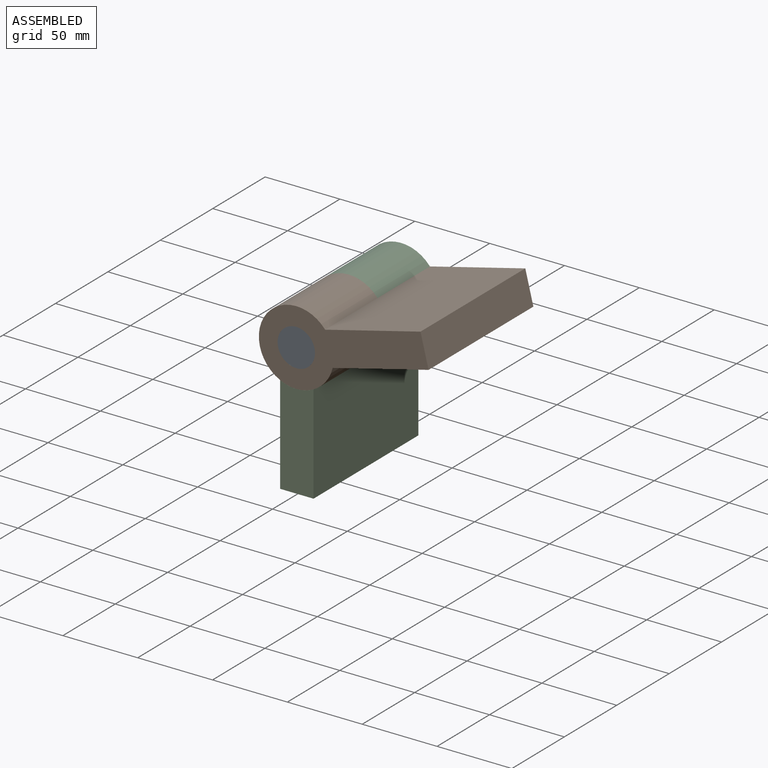
[diagram: assembled view]
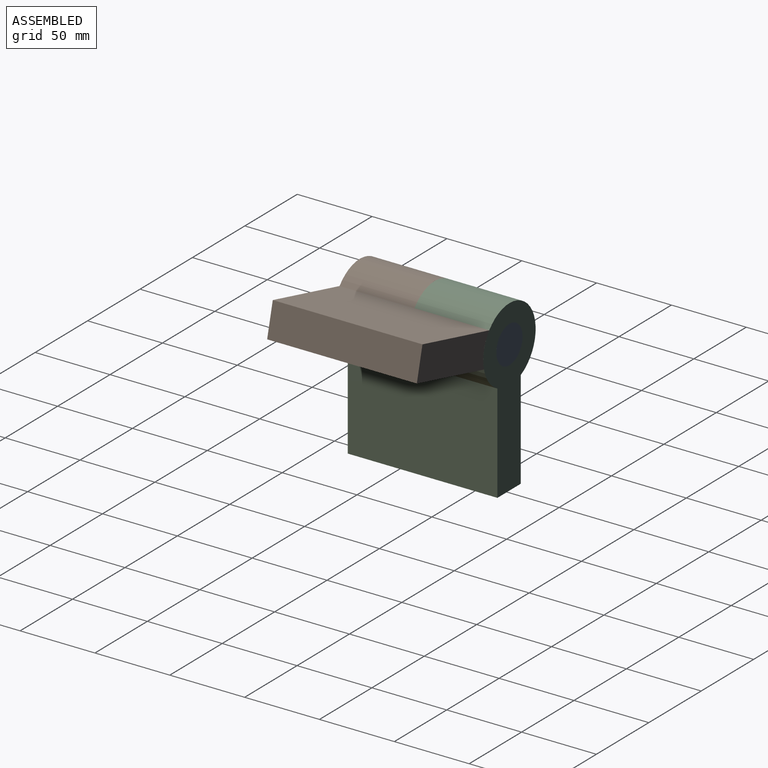
[diagram: assembled view, second angle]
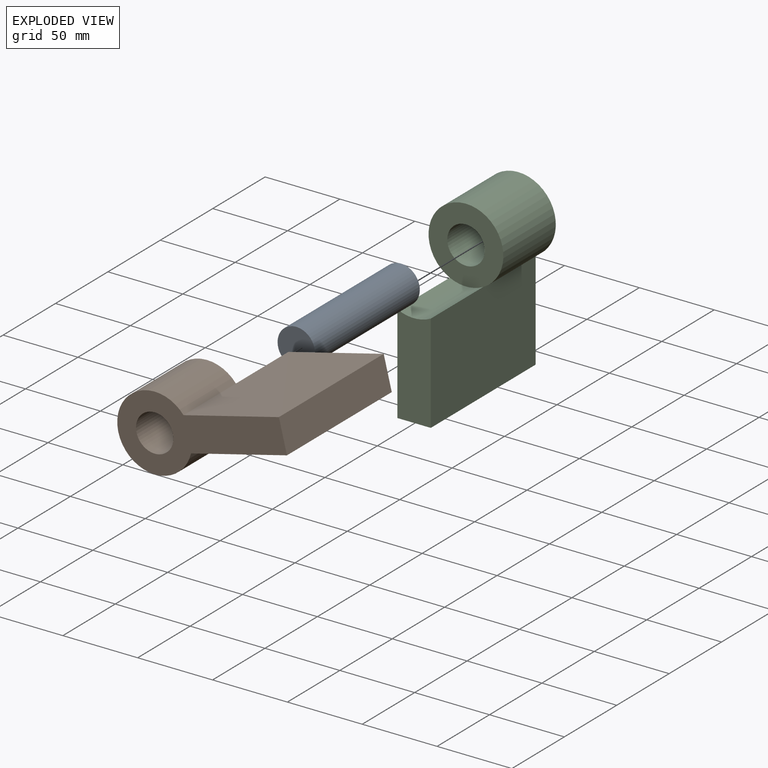
[diagram: exploded view]
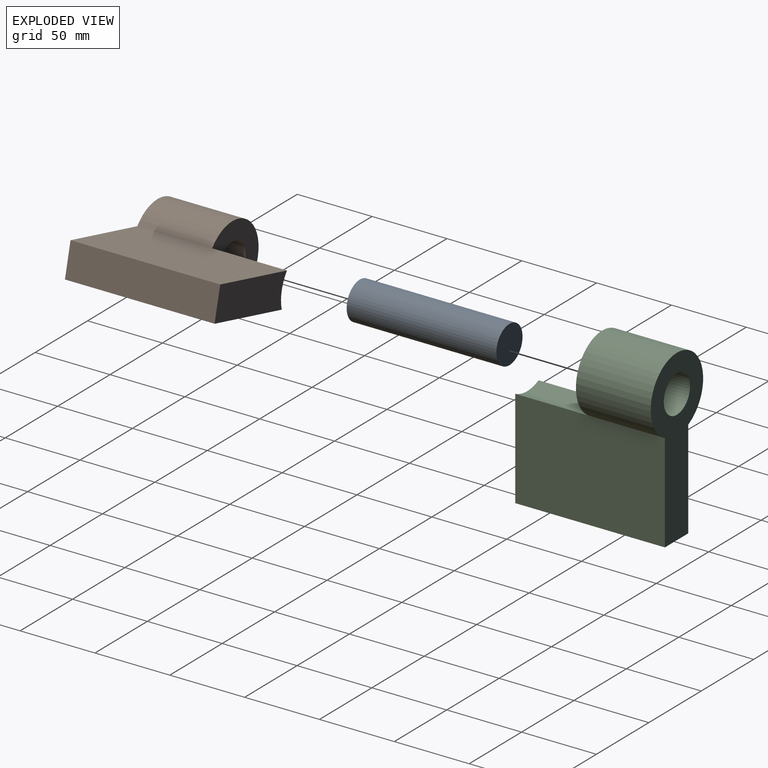
[diagram: exploded view, second angle]
ASSEMBLY  parts=3 mates=2
PART A: 3 faces, bbox 25x100x25 mm
  f0: cylinder r=12.5mm len=100mm, axis (0,1,0), area 7854mm2, adj f1,f2
  f1: plane 25x25mm, normal (0,-1,0), area 490.9mm2, adj f0
  f2: plane 25x25mm, normal (0,1,0), area 490.9mm2, adj f0
PART B: 9 faces, bbox 50x100x113.2 mm
  f0: cylinder r=25mm len=50mm, axis (0,1,0), area 6697.8mm2, adj f1,f2,f4,f6
  f1: plane 50x50mm, normal (0,-1,0), area 1472.6mm2, adj f0,f3,f8
  f2: plane 113.19x50mm, normal (0,1,0), area 2901.3mm2, adj f0,f4,f5,f6,f8
  f3: cylinder r=25mm len=50mm, axis (0,1,0), area 1156.1mm2, adj f1,f4,f6,f7
  f4: plane 100x65.65mm, normal (-1,0,0), area 6564.9mm2, adj f0,f2,f3,f5,f7
  f5: plane 100x22.3mm, normal (0,0,-1), area 2230.5mm2, adj f2,f4,f6,f7
  f6: plane 100x66mm, normal (1,0,0), area 6599.6mm2, adj f0,f2,f3,f5,f7
  f7: plane 66x22.3mm, normal (0,-1,0), area 1428.7mm2, adj f3,f4,f5,f6
  f8: cylinder r=12.5mm len=50mm, axis (0,-1,0), area 3927mm2, adj f1,f2
PART C: same geometry as B
PLACE A t=(-147.25,-131.2,-19.15)mm
PLACE B rot(axis=(0.79,0,-0.62),180deg) t=(-99.61,-231.2,-46.81)mm
PLACE C t=(-108.9,-131.2,-58.69)mm fixed
MATE fastened A.f0 <-> C.f0  axis (0,1,0) through (-147.25,-181.2,-19.15)mm
MATE revolute B.f0 <-> A.f0  axis (0,-1,0) through (-147.25,-231.2,-19.15)mm
